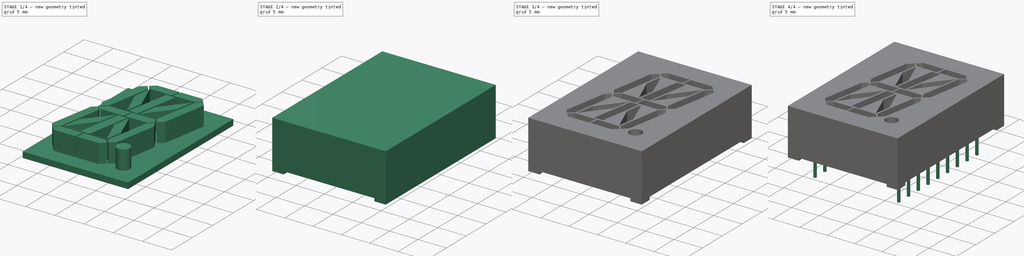
[diagram: build sequence overview — one tinted view per stage of 4, left to right]
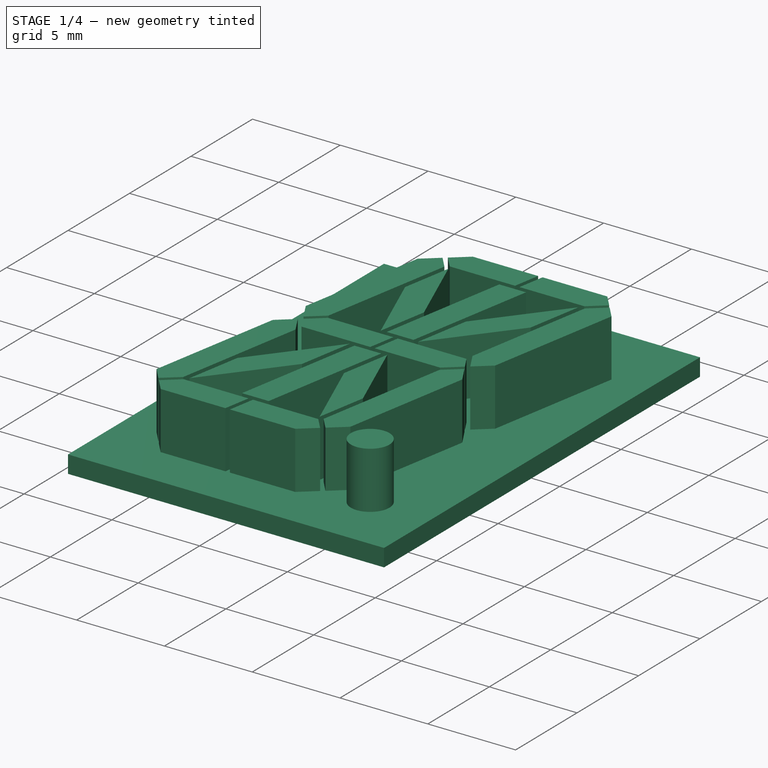
[diagram: stage 1 of 4 — iso view after this stage's code; geometry added in this stage tinted green]
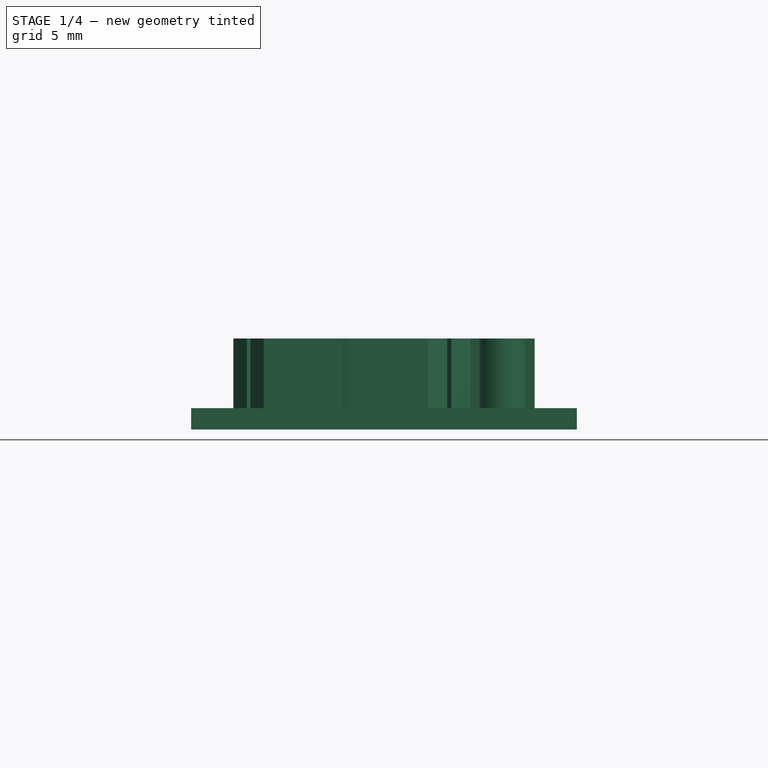
[diagram: stage 1 of 4 — front view after this stage's code; geometry added in this stage tinted green]
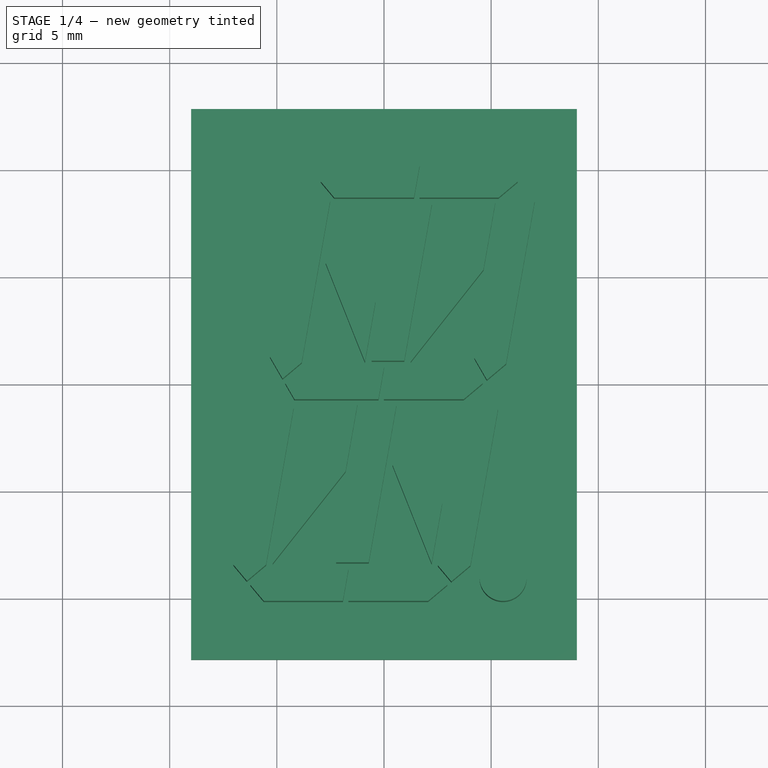
[diagram: stage 1 of 4 — top view after this stage's code; geometry added in this stage tinted green]
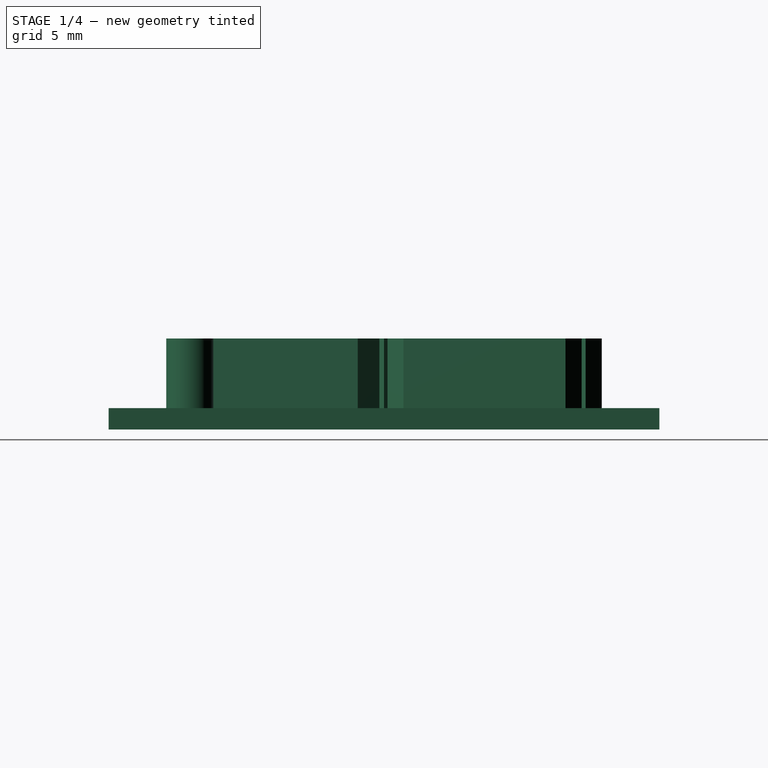
[diagram: stage 1 of 4 — right view after this stage's code; geometry added in this stage tinted green]
FCSTD DOCUMENT  (FreeCAD 1.0R38641 +468 (Git))
Label: PSA08-11SRWA
License: All rights reserved
LicenseURL: http://en.wikipedia.org/wiki/All_rights_reserved
objects: Sketcher::SketchObject×7, PartDesign::Pad×4, PartDesign::Body×3, PartDesign::Pocket×3, Part::FeaturePython×2, Spreadsheet::Sheet×1, Part::Cut×1
note: 40 computed .brp shape members not serialized (recipe doc carries the construction recipe); baked Part::Feature solids carry a one-line shape summary decoded from their .brp

FEATURE [Sketcher::SketchObject] Sketch
  ArcFitTolerance = 0
  AttachmentSupport = -> [XY_Plane001]
  FullyConstrained = true
  MakeInternals = false
  MapMode = 5
  expr: Constraints[6] = <<Param>>.pkgw - 2 mm
  expr: Constraints[7] = <<Param>>.pkgl - 2 mm
  sketch-geometry (4):
    g0: LineSegment StartX=-9 StartY=12.85 StartZ=0 EndX=9 EndY=12.85 EndZ=0
    g1: LineSegment StartX=9 StartY=12.85 StartZ=0 EndX=9 EndY=-12.85 EndZ=0
    g2: LineSegment StartX=9 StartY=-12.85 StartZ=0 EndX=-9 EndY=-12.85 EndZ=0
    g3: LineSegment StartX=-9 StartY=-12.85 StartZ=0 EndX=-9 EndY=12.85 EndZ=0
  constraints (11):
    c: Coincident(g0,g1)
    c: Coincident(g1,g2)
    c: Coincident(g2,g3)
    c: Coincident(g3,g0)
    c: Horizontal(g2)
    c: Vertical(g3)
    c: DistanceY(g1,g1) = 25.7
    c: DistanceX(g0,g0) = 18
    c: Symmetric(g0,g2,g-1)
    c: Horizontal(g0)
    c: Vertical(g1)
FEATURE [PartDesign::Pad] Pad001
  AllowMultiFace = false
  Direction = (0,0,1)
  Length = 1
  Length2 = 100
  Profile = -> Sketch
  Suppressed = false
  Type = 0
FEATURE [Sketcher::SketchObject] Sketch002
  ArcFitTolerance = 0
  AttachmentSupport = -> [XY_Plane001]
  FullyConstrained = true
  MakeInternals = false
  MapMode = 5
  expr: Constraints[101] = <<Param>>.pkgl
  expr: Constraints[102] = <<Param>>.pkgw
  sketch-geometry (174):
    g0: LineSegment StartX=1.66455 StartY=10.16 StartZ=0 EndX=1.40006 EndY=8.66 EndZ=0
    g1: LineSegment StartX=1.40006 StartY=8.66 StartZ=0 EndX=-2.32077 EndY=8.66 EndZ=0
    g2: LineSegment StartX=-2.32077 StartY=8.66 StartZ=0 EndX=-2.95009 EndY=9.41 EndZ=0
    g3: LineSegment StartX=-2.95009 StartY=9.41 StartZ=0 EndX=-2.05628 EndY=10.16 EndZ=0
    g4: LineSegment StartX=-2.05628 StartY=10.16 StartZ=0 EndX=1.66455 EndY=10.16 EndZ=0
    g5: LineSegment StartX=1.91841 StartY=10.16 StartZ=0 EndX=1.65392 EndY=8.66 EndZ=0
    g6: LineSegment StartX=1.65392 StartY=8.66 StartZ=0 EndX=5.34346 EndY=8.66 EndZ=0
    g7: LineSegment StartX=5.34346 StartY=8.66 StartZ=0 EndX=6.23728 EndY=9.41 EndZ=0
    g8: LineSegment StartX=6.23728 StartY=9.41 StartZ=0 EndX=5.60795 EndY=10.16 EndZ=0
    g9: LineSegment StartX=5.60795 StartY=10.16 StartZ=0 EndX=1.91841 EndY=10.16 EndZ=0
    g10: LineSegment StartX=-3.1416 StartY=9.2493 StartZ=0 EndX=-2.51228 EndY=8.4993 EndZ=0
    g11: LineSegment StartX=-2.51228 StartY=8.4993 StartZ=0 EndX=-3.84051 EndY=0.966506 EndZ=0
    g12: LineSegment StartX=-3.84051 StartY=0.966506 StartZ=0 EndX=-4.73433 EndY=0.216506 EndZ=0
    g13: LineSegment StartX=-4.73433 StartY=0.216506 StartZ=0 EndX=-5.31773 EndY=1.22698 EndZ=0
    g14: LineSegment StartX=-5.31773 StartY=1.22698 StartZ=0 EndX=-4.03542 EndY=8.4993 EndZ=0
    g15: LineSegment StartX=-4.03542 StartY=8.4993 StartZ=0 EndX=-3.1416 EndY=9.2493 EndZ=0
    g16: LineSegment StartX=6.39797 StartY=9.21849 StartZ=0 EndX=5.50416 EndY=8.46849 EndZ=0
    g17: LineSegment StartX=5.50416 StartY=8.46849 StartZ=0 EndX=4.21744 EndY=1.17117 EndZ=0
    g18: LineSegment StartX=4.21744 StartY=1.17117 StartZ=0 EndX=4.80084 EndY=0.160697 EndZ=0
    g19: LineSegment StartX=4.80084 StartY=0.160697 StartZ=0 EndX=5.69466 EndY=0.910697 EndZ=0
    g20: LineSegment StartX=5.69466 StartY=0.910697 StartZ=0 EndX=7.0273 EndY=8.46849 EndZ=0
    g21: LineSegment StartX=7.0273 StartY=8.46849 StartZ=0 EndX=6.39797 EndY=9.21849 EndZ=0
    g22: LineSegment StartX=-3.71551 StartY=0.75 StartZ=0 EndX=-4.60933 EndY=0 EndZ=0
    g23: LineSegment StartX=-4.60933 StartY=0 StartZ=0 EndX=-4.17632 EndY=-0.75 EndZ=0
    g24: LineSegment StartX=-4.17632 StartY=-0.75 StartZ=0 EndX=-0.259174 EndY=-0.75 EndZ=0
    g25: LineSegment StartX=-0.259174 StartY=-0.75 StartZ=0 EndX=0.00531691 EndY=0.75 EndZ=0
    g26: LineSegment StartX=0.00531691 StartY=0.75 StartZ=0 EndX=-3.71551 EndY=0.75 EndZ=0
    g27: LineSegment StartX=0.259174 StartY=0.75 StartZ=0 EndX=-0.00531691 EndY=-0.75 EndZ=0
    g28: LineSegment StartX=-0.00531691 StartY=-0.75 StartZ=0 EndX=3.71551 EndY=-0.75 EndZ=0
    g29: LineSegment StartX=3.71551 StartY=-0.75 StartZ=0 EndX=4.60933 EndY=0 EndZ=0
    g30: LineSegment StartX=4.60933 StartY=0 StartZ=0 EndX=4.17632 EndY=0.75 EndZ=0
    g31: LineSegment StartX=4.17632 StartY=0.75 StartZ=0 EndX=0.259174 EndY=0.75 EndZ=0
    g32: LineSegment StartX=4.73433 StartY=-0.216506 StartZ=0 EndX=3.84051 EndY=-0.966506 EndZ=0
    g33: LineSegment StartX=3.84051 StartY=-0.966506 StartZ=0 EndX=2.51228 EndY=-8.4993 EndZ=0
    g34: LineSegment StartX=2.51228 StartY=-8.4993 StartZ=0 EndX=3.1416 EndY=-9.2493 EndZ=0
    g35: LineSegment StartX=3.1416 StartY=-9.2493 StartZ=0 EndX=4.03542 EndY=-8.4993 EndZ=0
    g36: LineSegment StartX=4.03542 StartY=-8.4993 StartZ=0 EndX=5.31773 EndY=-1.22698 EndZ=0
    g37: LineSegment StartX=5.31773 StartY=-1.22698 StartZ=0 EndX=4.73433 EndY=-0.216506 EndZ=0
    g38: LineSegment StartX=-4.21744 StartY=-1.17117 StartZ=0 EndX=-4.80084 EndY=-0.160697 EndZ=0
    g39: LineSegment StartX=-4.80084 StartY=-0.160697 StartZ=0 EndX=-5.69466 EndY=-0.910697 EndZ=0
    g40: LineSegment StartX=-5.69466 StartY=-0.910697 StartZ=0 EndX=-7.0273 EndY=-8.46849 EndZ=0
    g41: LineSegment StartX=-7.0273 StartY=-8.46849 StartZ=0 EndX=-6.39797 EndY=-9.21849 EndZ=0
    g42: LineSegment StartX=-6.39797 StartY=-9.21849 StartZ=0 EndX=-5.50416 EndY=-8.46849 EndZ=0
    g43: LineSegment StartX=-5.50416 StartY=-8.46849 StartZ=0 EndX=-4.21744 EndY=-1.17117 EndZ=0
    g44: LineSegment StartX=-5.34346 StartY=-8.66 StartZ=0 EndX=-6.23728 EndY=-9.41 EndZ=0
    g45: LineSegment StartX=-6.23728 StartY=-9.41 StartZ=0 EndX=-5.60795 EndY=-10.16 EndZ=0
    g46: LineSegment StartX=-5.60795 StartY=-10.16 StartZ=0 EndX=-1.91841 EndY=-10.16 EndZ=0
    g47: LineSegment StartX=-1.91841 StartY=-10.16 StartZ=0 EndX=-1.65392 EndY=-8.66 EndZ=0
    g48: LineSegment StartX=-1.65392 StartY=-8.66 StartZ=0 EndX=-5.34346 EndY=-8.66 EndZ=0
    g49: LineSegment StartX=-1.40006 StartY=-8.66 StartZ=0 EndX=-1.66455 EndY=-10.16 EndZ=0
    g50: LineSegment StartX=-1.66455 StartY=-10.16 StartZ=0 EndX=2.05628 EndY=-10.16 EndZ=0
    g51: LineSegment StartX=2.05628 StartY=-10.16 StartZ=0 EndX=2.95009 EndY=-9.41 EndZ=0
    g52: LineSegment StartX=2.95009 StartY=-9.41 StartZ=0 EndX=2.32077 EndY=-8.66 EndZ=0
    g53: LineSegment StartX=2.32077 StartY=-8.66 StartZ=0 EndX=-1.40006 EndY=-8.66 EndZ=0
    g54: LineSegment StartX=-0.946713 StartY=-1.05 StartZ=0 EndX=0.576427 EndY=-1.05 EndZ=0
    g55: LineSegment StartX=0.576427 StartY=-1.05 StartZ=0 EndX=-0.712524 EndY=-8.36 EndZ=0
    g56: LineSegment StartX=-0.712524 StartY=-8.36 StartZ=0 EndX=-2.23566 EndY=-8.36 EndZ=0
    g57: LineSegment StartX=-2.23566 StartY=-8.36 StartZ=0 EndX=-0.946713 EndY=-1.05 EndZ=0
    g58: LineSegment StartX=-0.576427 StartY=1.05 StartZ=0 EndX=0.946713 EndY=1.05 EndZ=0
    g59: LineSegment StartX=0.946713 StartY=1.05 StartZ=0 EndX=2.23566 EndY=8.36 EndZ=0
    g60: LineSegment StartX=2.23566 StartY=8.36 StartZ=0 EndX=0.712524 EndY=8.36 EndZ=0
    g61: LineSegment StartX=0.712524 StartY=8.36 StartZ=0 EndX=-0.576427 EndY=1.05 EndZ=0
    g62: LineSegment StartX=-2.2234 StartY=8.41 StartZ=0 EndX=-2.71918 EndY=5.59829 EndZ=0
    g63: LineSegment StartX=-2.71918 StartY=5.59829 StartZ=0 EndX=-0.889871 EndY=1 EndZ=0
    g64: LineSegment StartX=-0.889871 StartY=1 StartZ=0 EndX=-0.394092 EndY=3.81171 EndZ=0
    g65: LineSegment StartX=-0.394092 StartY=3.81171 StartZ=0 EndX=-2.2234 EndY=8.41 EndZ=0
    g66: LineSegment StartX=1.79136 StartY=4.11261 StartZ=0 EndX=1.24252 EndY=1 EndZ=0
    g67: LineSegment StartX=1.24252 StartY=1 StartZ=0 EndX=4.64038 EndY=5.29739 EndZ=0
    g68: LineSegment StartX=4.64038 StartY=5.29739 StartZ=0 EndX=5.18922 EndY=8.41 EndZ=0
    g69: LineSegment StartX=5.18922 StartY=8.41 StartZ=0 EndX=1.79136 EndY=4.11261 EndZ=0
    g70: LineSegment StartX=0.889871 StartY=-1 StartZ=0 EndX=0.394092 EndY=-3.81171 EndZ=0
    g71: LineSegment StartX=0.394092 StartY=-3.81171 StartZ=0 EndX=2.2234 EndY=-8.41 EndZ=0
    g72: LineSegment StartX=2.2234 StartY=-8.41 StartZ=0 EndX=2.71918 EndY=-5.59829 EndZ=0
    g73: LineSegment StartX=2.71918 StartY=-5.59829 StartZ=0 EndX=0.889871 EndY=-1 EndZ=0
    g74: LineSegment StartX=-1.24252 StartY=-1 StartZ=0 EndX=-1.79136 EndY=-4.11261 EndZ=0
    g75: LineSegment StartX=-1.79136 StartY=-4.11261 StartZ=0 EndX=-5.18922 EndY=-8.41 EndZ=0
    g76: LineSegment StartX=-5.18922 StartY=-8.41 StartZ=0 EndX=-4.64038 EndY=-5.29739 EndZ=0
    g77: LineSegment StartX=-4.64038 StartY=-5.29739 StartZ=0 EndX=-1.24252 EndY=-1 EndZ=0
    g78: Circle CenterX=5.55628 CenterY=-9.06 CenterZ=0 NormalX=0 NormalY=0 NormalZ=1 AngleXU=0 Radius=1.1
    g79: LineSegment [constr] StartX=-10 StartY=13.85 StartZ=0 EndX=10 EndY=13.85 EndZ=0
    g80: LineSegment [constr] StartX=10 StartY=13.85 StartZ=0 EndX=10 EndY=-13.85 EndZ=0
    g81: LineSegment [constr] StartX=10 StartY=-13.85 StartZ=0 EndX=-10 EndY=-13.85 EndZ=0
    g82: LineSegment [constr] StartX=-10 StartY=-13.85 StartZ=0 EndX=-10 EndY=13.85 EndZ=0
    g83: LineSegment [constr] StartX=-10 StartY=13.85 StartZ=0 EndX=-14.8843 EndY=-13.85 EndZ=0
    g84: LineSegment [constr] StartX=-14.8843 StartY=-13.85 StartZ=0 EndX=-10 EndY=-13.85 EndZ=0
    g85: LineSegment [constr] StartX=-5.31773 StartY=1.22698 StartZ=0 EndX=-5.69466 EndY=-0.910697 EndZ=0
    g86: LineSegment [constr] StartX=-3.84051 StartY=0.966506 StartZ=0 EndX=-4.21744 EndY=-1.17117 EndZ=0
    g87: LineSegment [constr] StartX=-1.65392 StartY=-8.66 StartZ=0 EndX=-1.40006 EndY=-8.66 EndZ=0
    g88: LineSegment [constr] StartX=-1.66455 StartY=-10.16 StartZ=0 EndX=-1.91841 EndY=-10.16 EndZ=0
    g89: LineSegment [constr] StartX=0.00531691 StartY=0.75 StartZ=0 EndX=0.259174 EndY=0.75 EndZ=0
    g90: LineSegment [constr] StartX=-0.259174 StartY=-0.75 StartZ=0 EndX=-0.00531691 EndY=-0.75 EndZ=0
    g91: LineSegment [constr] StartX=1.66455 StartY=10.16 StartZ=0 EndX=1.91841 EndY=10.16 EndZ=0
    g92: LineSegment [constr] StartX=1.40006 StartY=8.66 StartZ=0 EndX=1.65392 EndY=8.66 EndZ=0
    g93: LineSegment [constr] StartX=5.69466 StartY=0.910697 StartZ=0 EndX=5.31773 EndY=-1.22698 EndZ=0
    g94: LineSegment [constr] StartX=4.21744 StartY=1.17117 StartZ=0 EndX=3.84051 EndY=-0.966506 EndZ=0
    g95: LineSegment [constr] StartX=1.40006 StartY=8.66 StartZ=0 EndX=1.40006 EndY=10.16 EndZ=0
    g96: LineSegment [constr] StartX=-3.09195 StartY=13.85 StartZ=0 EndX=7.64246 EndY=11.9572 EndZ=0
    g97: LineSegment [constr] StartX=-2.51228 StartY=8.4993 StartZ=0 EndX=-3.98949 EndY=8.75978 EndZ=0
    g98: LineSegment [constr] StartX=7.0273 StartY=8.46849 StartZ=0 EndX=5.55009 EndY=8.72896 EndZ=0
    g99: LineSegment [constr] StartX=-0.259174 StartY=-0.75 StartZ=0 EndX=-0.259174 EndY=0.75 EndZ=0
    g100: LineSegment [constr] StartX=-1.91841 StartY=-10.16 StartZ=0 EndX=-1.91841 EndY=-8.66 EndZ=0
    g101: LineSegment [constr] StartX=1.66455 StartY=10.16 StartZ=0 EndX=1.91076 EndY=10.1166 EndZ=0
    g102: LineSegment [constr] StartX=-0.576427 StartY=1.05 StartZ=0 EndX=-0.946713 EndY=-1.05 EndZ=0
    g103: LineSegment [constr] StartX=0.946713 StartY=1.05 StartZ=0 EndX=0.576427 EndY=-1.05 EndZ=0
    g104: LineSegment [constr] StartX=0.712524 StartY=8.36 StartZ=0 EndX=2.18974 EndY=8.09953 EndZ=0
    g105: LineSegment [constr] StartX=-4.80084 StartY=-0.160697 StartZ=0 EndX=-4.60933 EndY=0 EndZ=0
    g106: LineSegment [constr] StartX=-4.60933 StartY=0 StartZ=0 EndX=-4.73433 EndY=0.216506 EndZ=0
    g107: LineSegment [constr] StartX=4.60933 StartY=0 StartZ=0 EndX=4.73433 EndY=-0.216506 EndZ=0
    g108: LineSegment [constr] StartX=4.60933 StartY=0 StartZ=0 EndX=4.80084 EndY=0.160697 EndZ=0
    g109: LineSegment [constr] StartX=-6.23728 StartY=-9.41 StartZ=0 EndX=-6.39797 EndY=-9.21849 EndZ=0
    g110: LineSegment [constr] StartX=2.95009 StartY=-9.41 StartZ=0 EndX=3.1416 EndY=-9.2493 EndZ=0
    g111: LineSegment [constr] StartX=-3.1416 StartY=9.2493 StartZ=0 EndX=-2.95009 EndY=9.41 EndZ=0
    g112: LineSegment [constr] StartX=6.23728 StartY=9.41 StartZ=0 EndX=6.39797 EndY=9.21849 EndZ=0
    g113: LineSegment [constr] StartX=1.40006 StartY=8.66 StartZ=0 EndX=0.00531691 EndY=0.75 EndZ=0
    g114: LineSegment [constr] StartX=-0.259174 StartY=-0.75 StartZ=0 EndX=-1.65392 EndY=-8.66 EndZ=0
    g115: LineSegment [constr] StartX=0.712524 StartY=8.36 StartZ=0 EndX=0.712524 EndY=8.66 EndZ=0
    g116: LineSegment [constr] StartX=-0.576427 StartY=1.05 StartZ=0 EndX=-0.576427 EndY=0.75 EndZ=0
    g117: LineSegment [constr] StartX=-0.946713 StartY=-1.05 StartZ=0 EndX=-0.946713 EndY=-0.75 EndZ=0
    g118: LineSegment [constr] StartX=-2.23566 StartY=-8.36 StartZ=0 EndX=-2.23566 EndY=-8.66 EndZ=0
    g119: LineSegment [constr] StartX=-0.259174 StartY=0.75 StartZ=0 EndX=-1.55821 EndY=0 EndZ=0
    g120: LineSegment [constr] StartX=-1.55821 StartY=0 StartZ=0 EndX=-0.259174 EndY=-0.75 EndZ=0
    g121: LineSegment [constr] StartX=0.576427 StartY=-1.05 StartZ=0 EndX=3.72781 EndY=-1.60567 EndZ=0
    g122: LineSegment [constr] StartX=-0.946713 StartY=-1.05 StartZ=0 EndX=-4.0981 EndY=-0.494326 EndZ=0
    g123: LineSegment [constr] StartX=4.64038 StartY=5.29739 StartZ=0 EndX=3.46375 EndY=6.22773 EndZ=0
    g124: LineSegment [constr] StartX=-2.71918 StartY=5.59829 StartZ=0 EndX=-1.32542 EndY=6.15276 EndZ=0
    g125: LineSegment [constr] StartX=0.394092 StartY=-3.81171 StartZ=0 EndX=1.78785 EndY=-3.25724 EndZ=0
    g126: LineSegment [constr] StartX=-1.79136 StartY=-4.11261 StartZ=0 EndX=-2.968 EndY=-3.18227 EndZ=0
    g127: LineSegment [constr] StartX=-3.1416 StartY=9.2493 StartZ=0 EndX=-4.73433 EndY=0.216506 EndZ=0
    g128: LineSegment [constr] StartX=-4.73433 StartY=0.216506 StartZ=0 EndX=-4.80084 EndY=-0.160697 EndZ=0
    g129: LineSegment [constr] StartX=-4.80084 StartY=-0.160697 StartZ=0 EndX=-6.39797 EndY=-9.21849 EndZ=0
    g130: LineSegment [constr] StartX=6.39797 StartY=9.21849 StartZ=0 EndX=4.80084 EndY=0.160697 EndZ=0
    g131: LineSegment [constr] StartX=4.80084 StartY=0.160697 StartZ=0 EndX=4.73433 EndY=-0.216506 EndZ=0
    g132: LineSegment [constr] StartX=4.73433 StartY=-0.216506 StartZ=0 EndX=3.1416 EndY=-9.2493 EndZ=0
    g133: LineSegment [constr] StartX=-7.0273 StartY=-8.46849 StartZ=0 EndX=-6.28869 EndY=-8.59873 EndZ=0
    g134: LineSegment [constr] StartX=-5.50416 StartY=-8.46849 StartZ=0 EndX=-6.24276 EndY=-8.33825 EndZ=0
    g135: LineSegment [constr] StartX=2.51228 StartY=-8.4993 StartZ=0 EndX=3.25088 EndY=-8.62954 EndZ=0
    g136: LineSegment [constr] StartX=4.03542 StartY=-8.4993 StartZ=0 EndX=3.29681 EndY=-8.36907 EndZ=0
    g137: LineSegment [constr] StartX=-2.95009 StartY=9.41 StartZ=0 EndX=6.23728 EndY=9.41 EndZ=0
    g138: LineSegment [constr] StartX=5.34346 StartY=8.66 StartZ=0 EndX=5.34346 EndY=9.41 EndZ=0
    g139: LineSegment [constr] StartX=5.60795 StartY=10.16 StartZ=0 EndX=5.60795 EndY=9.41 EndZ=0
    g140: LineSegment [constr] StartX=-0.889871 StartY=1 StartZ=0 EndX=1.24252 EndY=1 EndZ=0
    g141: LineSegment [constr] StartX=-2.71918 StartY=5.59829 StartZ=0 EndX=-3.01462 EndY=5.65039 EndZ=0
    g142: LineSegment [constr] StartX=4.64038 StartY=5.29739 StartZ=0 EndX=4.93582 EndY=5.2453 EndZ=0
    g143: LineSegment [constr] StartX=-1.79136 StartY=-4.11261 StartZ=0 EndX=-1.49592 EndY=-4.1647 EndZ=0
    g144: LineSegment [constr] StartX=0.394092 StartY=-3.81171 StartZ=0 EndX=0.0986492 EndY=-3.75961 EndZ=0
    g145: LineSegment [constr] StartX=2.71918 StartY=-5.59829 StartZ=0 EndX=3.01462 EndY=-5.65039 EndZ=0
    g146: LineSegment [constr] StartX=-4.64038 StartY=-5.29739 StartZ=0 EndX=-4.93582 EndY=-5.2453 EndZ=0
    g147: LineSegment [constr] StartX=-6.23728 StartY=-9.41 StartZ=0 EndX=2.95009 EndY=-9.41 EndZ=0
    g148: LineSegment [constr] StartX=2.05628 StartY=-10.16 StartZ=0 EndX=2.05628 EndY=-9.41 EndZ=0
    g149: LineSegment [constr] StartX=2.32077 StartY=-8.66 StartZ=0 EndX=2.32077 EndY=-9.41 EndZ=0
    g150: LineSegment [constr] StartX=2.05628 StartY=-10.16 StartZ=0 EndX=3.74259 EndY=-10.16 EndZ=0
    g151: LineSegment [constr] StartX=3.74259 StartY=-10.16 StartZ=0 EndX=4.03542 EndY=-8.4993 EndZ=0
    g152: LineSegment [constr] StartX=3.74259 StartY=-10.16 StartZ=0 EndX=5.55628 EndY=-10.16 EndZ=0
    g153: LineSegment [constr] StartX=0 StartY=0 StartZ=0 EndX=0.126928 EndY=0 EndZ=0
    g154: LineSegment [constr] StartX=0 StartY=0 StartZ=0 EndX=-0.126928 EndY=0 EndZ=0
    g155: LineSegment [constr] StartX=0.126928 StartY=0 StartZ=0 EndX=4.60933 EndY=0 EndZ=0
    g156: LineSegment [constr] StartX=-0.126928 StartY=0 StartZ=0 EndX=-4.60933 EndY=0 EndZ=0
    g157: LineSegment [constr] StartX=-5.60795 StartY=-10.16 StartZ=0 EndX=-7.32556 EndY=-10.16 EndZ=0
    g158: LineSegment [constr] StartX=-7.32556 StartY=-10.16 StartZ=0 EndX=-7.0273 EndY=-8.46849 EndZ=0
    g159: LineSegment [constr] StartX=-2.05628 StartY=10.16 StartZ=0 EndX=-3.74259 EndY=10.16 EndZ=0
    g160: LineSegment [constr] StartX=-3.74259 StartY=10.16 StartZ=0 EndX=-4.03542 EndY=8.4993 EndZ=0
    g161: LineSegment [constr] StartX=-3.74259 StartY=10.16 StartZ=0 EndX=-3.09195 EndY=13.85 EndZ=0
    g162: LineSegment [constr] StartX=5.60795 StartY=10.16 StartZ=0 EndX=7.32556 EndY=10.16 EndZ=0
    g163: LineSegment [constr] StartX=7.32556 StartY=10.16 StartZ=0 EndX=7.0273 EndY=8.46849 EndZ=0
    g164: LineSegment [constr] StartX=7.32556 StartY=10.16 StartZ=0 EndX=7.64246 EndY=11.9572 EndZ=0
    g165: LineSegment [constr] StartX=-0.394092 StartY=3.81171 StartZ=0 EndX=-0.0986492 EndY=3.75961 EndZ=0
    g166: LineSegment [constr] StartX=1.79136 StartY=4.11261 StartZ=0 EndX=1.49592 EndY=4.1647 EndZ=0
    g167: LineSegment [constr] StartX=-0.889871 StartY=1 StartZ=0 EndX=-0.933953 EndY=0.75 EndZ=0
    g168: LineSegment [constr] StartX=-2.2234 StartY=8.41 StartZ=0 EndX=5.18922 EndY=8.41 EndZ=0
    g169: LineSegment [constr] StartX=-2.2234 StartY=8.41 StartZ=0 EndX=-2.17932 EndY=8.66 EndZ=0
    g170: LineSegment [constr] StartX=-1.24252 StartY=-1 StartZ=0 EndX=0.889871 EndY=-1 EndZ=0
    g171: LineSegment [constr] StartX=0.889871 StartY=-1 StartZ=0 EndX=0.933953 EndY=-0.75 EndZ=0
    g172: LineSegment [constr] StartX=-5.18922 StartY=-8.41 StartZ=0 EndX=2.2234 EndY=-8.41 EndZ=0
    g173: LineSegment [constr] StartX=2.2234 StartY=-8.41 StartZ=0 EndX=2.17932 EndY=-8.66 EndZ=0
  constraints (477):
    c: Coincident(g0,g1)
    c: Horizontal(g1)
    c: Coincident(g1,g2)
    c: Coincident(g2,g3)
    c: Coincident(g3,g4)
    c: Coincident(g4,g0)
    c: Horizontal(g4)
    c: Coincident(g5,g6)
    c: Coincident(g6,g7)
    c: Coincident(g7,g8)
    c: Coincident(g8,g9)
    c: Coincident(g9,g5)
    c: Horizontal(g9)
    c: Coincident(g10,g11)
    c: Coincident(g11,g12)
    c: Coincident(g12,g13)
    c: Coincident(g13,g14)
    c: Coincident(g14,g15)
    c: Coincident(g15,g10)
    c: Coincident(g16,g17)
    c: Coincident(g17,g18)
    c: Coincident(g18,g19)
    c: Coincident(g19,g20)
    c: Coincident(g20,g21)
    c: Coincident(g21,g16)
    c: Coincident(g22,g23)
    c: Coincident(g23,g24)
    c: Horizontal(g24)
    c: Coincident(g24,g25)
    c: Coincident(g25,g26)
    c: Coincident(g26,g22)
    c: Horizontal(g26)
    c: Coincident(g27,g28)
    c: Coincident(g28,g29)
    c: Coincident(g29,g30)
    c: Coincident(g30,g31)
    c: Coincident(g31,g27)
    c: Horizontal(g31)
    c: Coincident(g32,g33)
    c: Coincident(g33,g34)
    c: Coincident(g34,g35)
    c: Coincident(g35,g36)
    c: Coincident(g36,g37)
    c: Coincident(g37,g32)
    c: Coincident(g38,g39)
    c: Coincident(g39,g40)
    c: Coincident(g40,g41)
    c: Coincident(g41,g42)
    c: Coincident(g42,g43)
    c: Coincident(g43,g38)
    c: Coincident(g44,g45)
    c: Coincident(g45,g46)
    c: Horizontal(g46)
    c: Coincident(g46,g47)
    c: Coincident(g47,g48)
    c: Coincident(g48,g44)
    c: Coincident(g49,g50)
    c: Horizontal(g50)
    c: Coincident(g50,g51)
    c: Coincident(g51,g52)
    c: Coincident(g52,g53)
    c: Coincident(g53,g49)
    c: Horizontal(g53)
    c: Horizontal(g54)
    c: Coincident(g54,g55)
    c: Coincident(g55,g56)
    c: Coincident(g56,g57)
    c: Coincident(g57,g54)
    c: Horizontal(g58)
    c: Coincident(g58,g59)
    c: Coincident(g59,g60)
    c: Horizontal(g60)
    c: Coincident(g60,g61)
    c: Coincident(g61,g58)
    c: Coincident(g62,g63)
    c: Coincident(g63,g64)
    c: Coincident(g64,g65)
    c: Coincident(g66,g67)
    c: Coincident(g67,g68)
    c: Coincident(g68,g69)
    c: Coincident(g69,g66)
    c: Coincident(g70,g71)
    c: Coincident(g71,g72)
    c: Coincident(g72,g73)
    c: Coincident(g73,g70)
    c: Coincident(g74,g75)
    c: Coincident(g75,g76)
    c: Coincident(g76,g77)
    c: Coincident(g77,g74)
    c: Coincident(g62,g65)
    c: Horizontal(g48)
    c: Coincident(g79,g80)
    c: Coincident(g80,g81)
    c: Coincident(g81,g82)
    c: Coincident(g82,g79)
    c: Horizontal(g79)
    c: Vertical(g82)
    c: Coincident(g79,g83)
    c: Coincident(g83,g84)
    c: Coincident(g84,g81)
    c: Horizontal(g84)
    c: DistanceX(g79,g79) = 20
    c: DistanceY(g80,g80) = 27.7
    c: Symmetric(g79,g80,g-1)
    c: Symmetric(g81,g80,g-2)
    c: Angle(g83,g82) = 0.174533
    c: Horizontal(g28)
    c: Horizontal(g56)
    c: Horizontal(g6)
    c: Coincident(g85,g13)
    c: Coincident(g85,g39)
    c: Parallel(g40,g85)
    c: Parallel(g85,g14)
    c: Parallel(g14,g83)
    c: Coincident(g86,g11)
    c: Coincident(g86,g38)
    c: Parallel(g86,g11)
    c: Parallel(g11,g43)
    c: Parallel(g43,g83)
    c: Coincident(g87,g47)
    c: Coincident(g87,g49)
    c: Horizontal(g87)
    c: Coincident(g88,g46)
    c: Coincident(g49,g88)
    c: Horizontal(g88)
    c: Coincident(g89,g25)
    c: Coincident(g89,g27)
    c: Coincident(g90,g24)
    c: Coincident(g90,g27)
    c: Horizontal(g90)
    c: Horizontal(g89)
    c: Coincident(g91,g0)
    c: Coincident(g91,g5)
    c: Coincident(g92,g0)
    c: Coincident(g92,g5)
    c: Horizontal(g91)
    c: Horizontal(g92)
    c: Coincident(g93,g19)
    c: Coincident(g93,g36)
    c: Coincident(g94,g17)
    c: Coincident(g94,g32)
    c: Parallel(g33,g94)
    c: Parallel(g94,g17)
    c: Parallel(g17,g20)
    c: Parallel(g20,g93)
    c: Parallel(g93,g36)
    c: Parallel(g36,g83)
    c: Coincident(g95,g0)
    c: PointOnObject(g95,g4)
    c: Vertical(g95)
    c: DistanceY(g95,g95) = 1.5
    c: PointOnObject(g96,g79)
    c: Distance(g96) = 10.9
    c: Coincident(g97,g10)
    c: PointOnObject(g97,g14)
    c: Perpendicular(g11,g97)
    c: Equal(g97,g95)
    c: PointOnObject(g98,g17)
    c: Perpendicular(g98,g20)
    c: Equal(g98,g95)
    c: Coincident(g20,g98)
    c: DistanceY(g45,g3) = 20.32
    c: Parallel(g25,g27)
    c: Parallel(g0,g5)
    c: Parallel(g47,g49)
    c: Coincident(g99,g24)
    c: PointOnObject(g99,g26)
    c: Vertical(g99)
    c: Coincident(g100,g46)
    c: PointOnObject(g100,g48)
    c: Vertical(g100)
    c: Equal(g100,g99)
    c: Equal(g99,g95)
    c: Equal(g91,g89)
    c: Equal(g89,g87)
    c: PointOnObject(g101,g5)
    c: Perpendicular(g0,g101)
    c: Distance(g101) = 0.25
    c: Coincident(g101,g0)
    c: Coincident(g102,g58)
    c: Coincident(g102,g54)
    c: Coincident(g103,g58)
    c: Coincident(g104,g60)
    c: PointOnObject(g104,g59)
    c: Perpendicular(g61,g104)
    c: Equal(g104,g95)
    c: Parallel(g61,g102)
    c: Parallel(g102,g59)
    c: Parallel(g59,g103)
    c: Parallel(g103,g55)
    c: Parallel(g55,g57)
    c: Parallel(g57,g83)
    c: Coincident(g103,g54)
    c: Coincident(g105,g22)
    c: Coincident(g106,g22)
    c: Coincident(g106,g12)
    c: Parallel(g13,g106)
    c: Parallel(g106,g23)
    c: Parallel(g22,g105)
    c: Parallel(g105,g39)
    c: Coincident(g38,g105)
    c: Equal(g105,g106)
    c: Equal(g106,g101)
    c: Parallel(g22,g12)
    c: Parallel(g23,g38)
    c: Diameter(g78) = 2.2
    c: Coincident(g107,g29)
    c: Coincident(g107,g32)
    c: Coincident(g108,g29)
    c: Coincident(g108,g18)
    c: Parallel(g30,g18)
    c: Parallel(g18,g37)
    c: Parallel(g107,g37)
    c: Parallel(g108,g19)
    c: Parallel(g19,g29)
    c: Parallel(g29,g32)
    c: Equal(g108,g107)
    c: Equal(g108,g101)
    c: Coincident(g109,g44)
    c: Coincident(g109,g41)
    c: Coincident(g110,g51)
    c: Coincident(g110,g34)
    c: Parallel(g51,g110)
    c: Parallel(g110,g35)
    c: Parallel(g52,g34)
    c: Parallel(g41,g109)
    c: Parallel(g109,g45)
    c: Parallel(g42,g44)
    c: Equal(g109,g110)
    c: Equal(g109,g101)
    c: Coincident(g111,g10)
    c: Coincident(g111,g2)
    c: Coincident(g112,g7)
    c: Coincident(g112,g16)
    c: Parallel(g21,g112)
    c: Parallel(g112,g8)
    c: Parallel(g7,g16)
    c: Parallel(g15,g111)
    c: Parallel(g111,g3)
    c: Parallel(g2,g10)
    c: Equal(g111,g101)
    c: Equal(g112,g101)
    c: Coincident(g113,g0)
    c: Coincident(g113,g25)
    c: Coincident(g114,g24)
    c: Coincident(g114,g47)
    c: Parallel(g0,g113)
    c: Parallel(g25,g113)
    c: Parallel(g25,g114)
    c: Parallel(g47,g114)
    c: Parallel(g0,g83)
    c: Parallel(g62,g64)
    c: Parallel(g64,g66)
    c: Parallel(g66,g68)
    c: Parallel(g68,g74)
    c: Parallel(g74,g76)
    c: Parallel(g76,g70)
    c: Parallel(g70,g72)
    c: Parallel(g72,g83)
    c: Coincident(g115,g60)
    c: PointOnObject(g115,g1)
    c: Vertical(g115)
    c: DistanceY(g115,g115) = 0.3
    c: Coincident(g116,g58)
    c: PointOnObject(g116,g26)
    c: Vertical(g116)
    c: Coincident(g117,g54)
    c: PointOnObject(g117,g24)
    c: Vertical(g117)
    c: Coincident(g118,g56)
    c: PointOnObject(g118,g48)
    c: Vertical(g118)
    c: Equal(g118,g117)
    c: Equal(g117,g116)
    c: Equal(g116,g115)
    c: Coincident(g119,g99)
    c: PointOnObject(g119,g-1)
    c: Coincident(g120,g119)
    c: Coincident(g120,g24)
    c: Equal(g119,g120)
    c: PointOnObject(g121,g33)
    c: Coincident(g122,g54)
    c: PointOnObject(g122,g86)
    c: Coincident(g121,g54)
    c: Perpendicular(g121,g55)
    c: Perpendicular(g122,g57)
    c: Equal(g122,g121)
    c: Equal(g59,g55)
    c: Coincident(g123,g67)
    c: PointOnObject(g123,g69)
    c: Perpendicular(g67,g123)
    c: Equal(g123,g95)
    c: Parallel(g69,g67)
    c: PointOnObject(g124,g65)
    c: Coincident(g124,g62)
    c: Equal(g124,g95)
    c: Parallel(g65,g63)
    c: Coincident(g125,g70)
    c: PointOnObject(g125,g73)
    c: PointOnObject(g126,g77)
    c: Coincident(g126,g74)
    c: Equal(g126,g125)
    c: Equal(g125,g95)
    c: Parallel(g75,g77)
    c: Parallel(g71,g73)
    c: Coincident(g127,g10)
    c: Coincident(g127,g12)
    c: Coincident(g128,g12)
    c: Coincident(g128,g38)
    c: Coincident(g129,g38)
    c: Coincident(g129,g41)
    c: Coincident(g130,g16)
    c: Coincident(g130,g18)
    c: Coincident(g131,g18)
    c: Coincident(g131,g32)
    c: Coincident(g132,g32)
    c: Coincident(g132,g34)
    c: Parallel(g130,g131)
    c: Parallel(g131,g132)
    c: Parallel(g129,g128)
    c: Parallel(g128,g127)
    c: Parallel(g127,g130)
    c: Parallel(g130,g83)
    c: Coincident(g133,g40)
    c: PointOnObject(g133,g129)
    c: Coincident(g134,g42)
    c: PointOnObject(g134,g129)
    c: Perpendicular(g129,g134)
    c: Perpendicular(g133,g129)
    c: Equal(g134,g133)
    c: Coincident(g135,g33)
    c: PointOnObject(g135,g132)
    c: Coincident(g136,g35)
    c: PointOnObject(g136,g132)
    c: Perpendicular(g132,g136)
    c: Perpendicular(g135,g132)
    c: Equal(g135,g136)
    c: PointOnObject(g22,g-1)
    c: PointOnObject(g29,g-1)
    c: Coincident(g137,g2)
    c: Coincident(g137,g7)
    c: Coincident(g138,g6)
    c: PointOnObject(g138,g137)
    c: Vertical(g138)
    c: Coincident(g139,g8)
    c: PointOnObject(g139,g137)
    c: Vertical(g139)
    c: Perpendicular(g137,g139)
    c: Equal(g138,g139)
    c: Coincident(g140,g63)
    c: Coincident(g140,g66)
    c: Horizontal(g140)
    c: Coincident(g141,g62)
    c: PointOnObject(g141,g11)
    c: Perpendicular(g62,g141)
    c: Equal(g141,g115)
    c: Coincident(g142,g67)
    c: PointOnObject(g142,g17)
    c: Perpendicular(g68,g142)
    c: Equal(g142,g115)
    c: Coincident(g143,g74)
    c: PointOnObject(g143,g57)
    c: Coincident(g144,g70)
    c: PointOnObject(g144,g55)
    c: Coincident(g145,g72)
    c: PointOnObject(g145,g33)
    c: PointOnObject(g146,g43)
    c: Coincident(g146,g76)
    c: Perpendicular(g76,g146)
    c: Perpendicular(g72,g145)
    c: Perpendicular(g70,g144)
    c: Perpendicular(g74,g143)
    c: Equal(g143,g144)
    c: Equal(g144,g146)
    c: Equal(g146,g145)
    c: Equal(g145,g117)
    c: Coincident(g147,g44)
    c: Coincident(g147,g51)
    c: Horizontal(g147)
    c: PointOnObject(g148,g147)
    c: Vertical(g148)
    c: Coincident(g149,g52)
    c: PointOnObject(g149,g147)
    c: Vertical(g149)
    c: Equal(g148,g149)
    c: Coincident(g50,g148)
    c: Coincident(g150,g50)
    c: Horizontal(g150)
    c: Coincident(g151,g150)
    c: Coincident(g151,g35)
    c: Coincident(g152,g150)
    c: PointOnObject(g152,g78)
    c: Horizontal(g152)
    c: Tangent(g152,g78)
    c: Parallel(g151,g36)
    c: Equal(g150,g151)
    c: DistanceX(g50,g152) = 3.5
    c: Coincident(g153,g-1)
    c: PointOnObject(g153,g27)
    c: Horizontal(g153)
    c: Coincident(g154,g-1)
    c: PointOnObject(g154,g25)
    c: Horizontal(g154)
    c: Coincident(g155,g153)
    c: Coincident(g155,g29)
    c: Coincident(g156,g154)
    c: Coincident(g156,g22)
    c: Equal(g154,g153)
    c: Equal(g156,g155)
    c: Coincident(g157,g45)
    c: Horizontal(g157)
    c: Coincident(g158,g157)
    c: Coincident(g158,g40)
    c: Parallel(g158,g40)
    c: Equal(g158,g157)
    c: Coincident(g159,g3)
    c: Horizontal(g159)
    c: Coincident(g160,g159)
    c: Coincident(g160,g14)
    c: Coincident(g161,g159)
    c: Coincident(g161,g96)
    c: Coincident(g162,g8)
    c: Horizontal(g162)
    c: Coincident(g163,g162)
    c: Coincident(g163,g20)
    c: Coincident(g164,g162)
    c: Coincident(g164,g96)
    c: Parallel(g14,g160)
    c: Parallel(g160,g161)
    c: Equal(g160,g159)
    c: Parallel(g163,g20)
    c: Parallel(g20,g164)
    c: Equal(g162,g163)
    c: Perpendicular(g96,g164)
    c: Coincident(g165,g64)
    c: Coincident(g166,g66)
    c: PointOnObject(g166,g59)
    c: PointOnObject(g165,g61)
    c: Perpendicular(g64,g165)
    c: Perpendicular(g66,g166)
    c: Equal(g166,g165)
    c: Equal(g165,g116)
    c: PointOnObject(g167,g26)
    c: Parallel(g167,g64)
    c: Equal(g167,g89)
    c: Coincident(g167,g63)
    c: Coincident(g168,g62)
    c: Coincident(g168,g68)
    c: Horizontal(g168)
    c: Coincident(g169,g62)
    c: PointOnObject(g169,g1)
    c: Parallel(g62,g169)
    c: Equal(g169,g92)
    c: Coincident(g170,g74)
    c: Coincident(g170,g70)
    c: Horizontal(g170)
    c: Coincident(g171,g70)
    c: PointOnObject(g171,g28)
    c: Parallel(g70,g171)
    c: Equal(g171,g90)
    c: Coincident(g172,g75)
    c: Coincident(g172,g71)
    c: Horizontal(g172)
    c: Coincident(g173,g71)
    c: PointOnObject(g173,g53)
    c: Parallel(g173,g72)
    c: Equal(g173,g87)
    c: Equal(g10,g2)
    c: Equal(g7,g16)
    c: Equal(g34,g52)
    c: Equal(g42,g44)
    c: Equal(g119,g99)
    c: Equal(g32,g29)
    c: Equal(g12,g22)
    c: Perpendicular(g63,g124)
    c: Perpendicular(g75,g126)
    c: Perpendicular(g71,g125)
FEATURE [PartDesign::Pad] Pad002
  AllowMultiFace = false
  BaseFeature = -> Pad001
  Direction = (0,0,1)
  Length = 4.25
  Length2 = 100
  Profile = -> Sketch002
  Refine = true
  Suppressed = false
  Type = 0
  expr: Length = <<Param>>.pkgh / 2
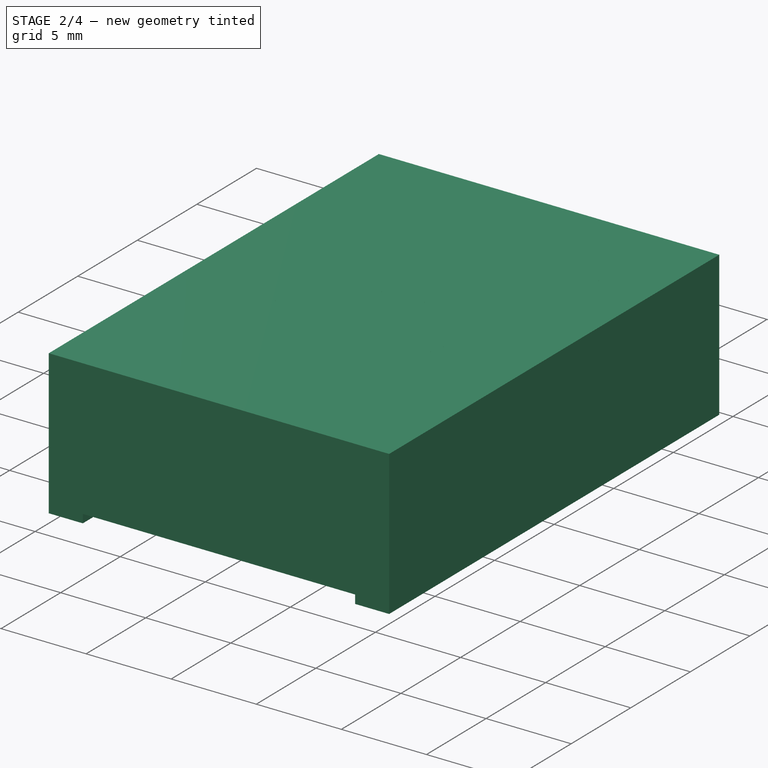
[diagram: stage 2 of 4 — iso view after this stage's code; geometry added in this stage tinted green]
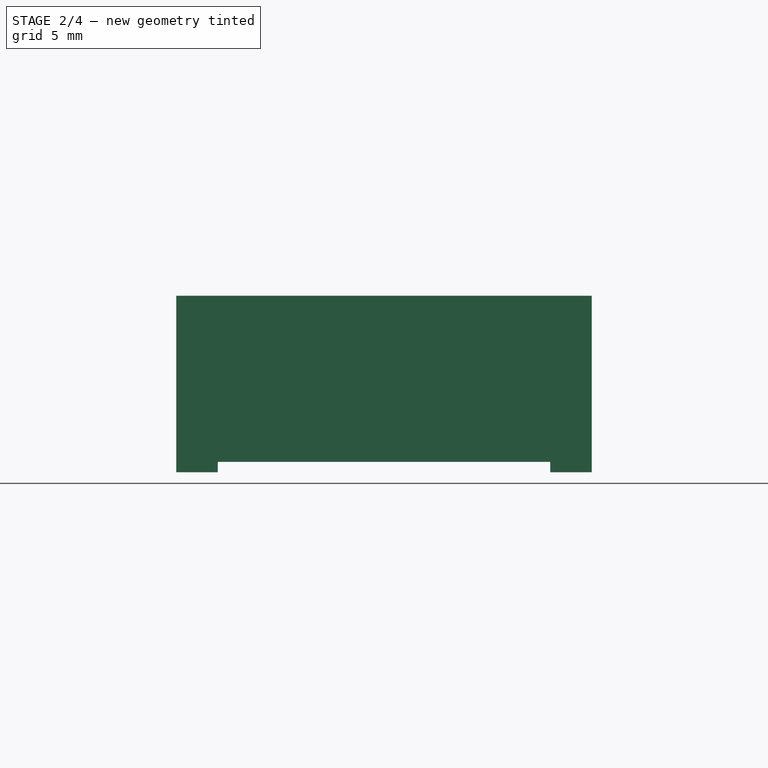
[diagram: stage 2 of 4 — front view after this stage's code; geometry added in this stage tinted green]
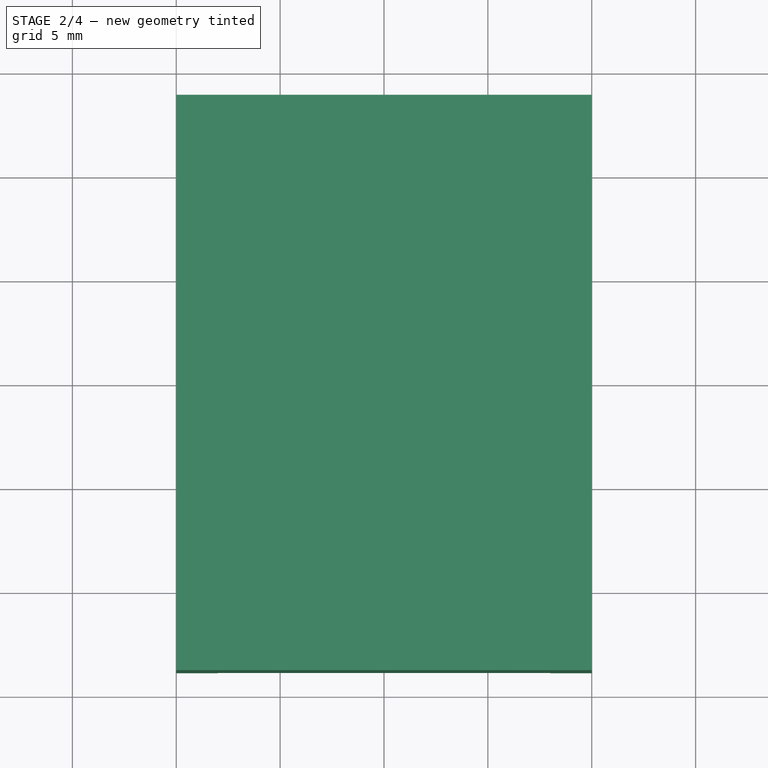
[diagram: stage 2 of 4 — top view after this stage's code; geometry added in this stage tinted green]
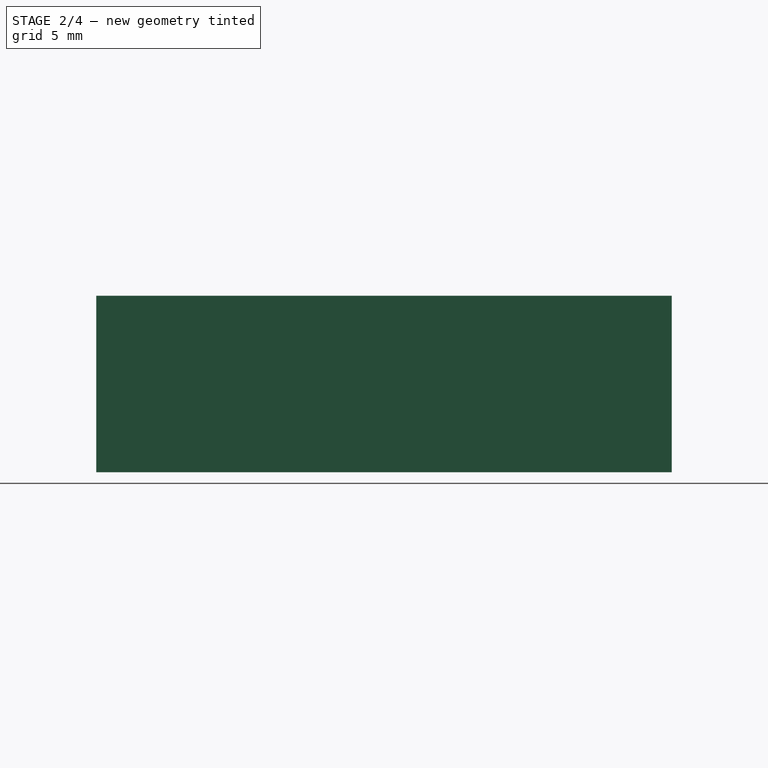
[diagram: stage 2 of 4 — right view after this stage's code; geometry added in this stage tinted green]
FEATURE [PartDesign::Body] Body001  label="Digit"
  AllowCompound = false
  Group = -> [Sketch,Pad001,Sketch002,Pad002]
  Origin = -> Origin001
  Placement = pos=(0,0,4.25) rot=(0,0,1;0rad)
  Tip = -> Pad002
  expr: .Placement.Base.z = <<Param>>.pkgh / 2
FEATURE [Sketcher::SketchObject] Sketch004
  ArcFitTolerance = 0
  AttachmentSupport = -> [XY_Plane003]
  FullyConstrained = true
  MakeInternals = false
  MapMode = 5
  expr: Constraints[8] = <<Param>>.pkgl
  expr: Constraints[9] = <<Param>>.pkgw
  sketch-geometry (4):
    g0: LineSegment StartX=-10 StartY=13.85 StartZ=0 EndX=10 EndY=13.85 EndZ=0
    g1: LineSegment StartX=10 StartY=13.85 StartZ=0 EndX=10 EndY=-13.85 EndZ=0
    g2: LineSegment StartX=10 StartY=-13.85 StartZ=0 EndX=-10 EndY=-13.85 EndZ=0
    g3: LineSegment StartX=-10 StartY=-13.85 StartZ=0 EndX=-10 EndY=13.85 EndZ=0
  constraints (11):
    c: Coincident(g0,g1)
    c: Coincident(g1,g2)
    c: Coincident(g2,g3)
    c: Coincident(g3,g0)
    c: Horizontal(g0)
    c: Horizontal(g2)
    c: Vertical(g1)
    c: Vertical(g3)
    c: DistanceX(g0,g0) = 20
    c: DistanceY(g1,g1) = 27.7
    c: Symmetric(g0,g2,g-1)
FEATURE [PartDesign::Pad] Pad004  label="Pad005"
  AllowMultiFace = false
  Direction = (0,0,1)
  Length = 8.5
  Length2 = 100
  Profile = -> Sketch004
  Suppressed = false
  Type = 0
FEATURE [Sketcher::SketchObject] Sketch005
  ArcFitTolerance = 0
  AttachmentSupport = -> [XZ_Plane003]
  FullyConstrained = true
  MakeInternals = false
  MapMode = 5
  Placement = pos=(0,0,0) rot=(1,0,0;1.5708rad)
  expr: Constraints[10] = <<Param>>.pkgl - <<Param>>.footedge * 2
  expr: Constraints[7] = <<Param>>.footh
  sketch-geometry (4):
    g0: LineSegment StartX=-8 StartY=0 StartZ=0 EndX=8 EndY=0 EndZ=0
    g1: LineSegment StartX=8 StartY=0 StartZ=0 EndX=8 EndY=0.5 EndZ=0
    g2: LineSegment StartX=8 StartY=0.5 StartZ=0 EndX=-8 EndY=0.5 EndZ=0
    g3: LineSegment StartX=-8 StartY=0.5 StartZ=0 EndX=-8 EndY=0 EndZ=0
  constraints (11):
    c: Coincident(g0,g1)
    c: Coincident(g1,g2)
    c: Coincident(g2,g3)
    c: Coincident(g3,g0)
    c: Horizontal(g2)
    c: Vertical(g1)
    c: Vertical(g3)
    c: DistanceY(g1,g1) = 0.5
    c: Symmetric(g0,g0,g-1)
    c: Horizontal(g0)
    c: DistanceX(g0,g0) = 16
FEATURE [PartDesign::Pocket] Pocket
  AllowMultiFace = false
  BaseFeature = -> Pad004
  Direction = (0,1,-2e-16)
  Length = 5
  Length2 = 100
  Midplane = true
  Profile = -> Sketch005
  Suppressed = false
  Type = 1
FEATURE [PartDesign::Body] Body003
  AllowCompound = false
  Group = -> [Sketch004,Pad004,Sketch005,Pocket,Sketch006,Pocket001,Sketch007,Pocket002]
  Origin = -> Origin003
  Tip = -> Pocket002
FEATURE [Part::FeaturePython] Clone  label="Body004"  # Draft clone (typed FeaturePython)
  AttacherType = Attacher::AttachEngine3D
  Fuse = false
  Objects = -> [Body001]
  Placement = pos=(0,0,4.25) rot=(0,0,1;0rad)
  Scale = (1,1,1)
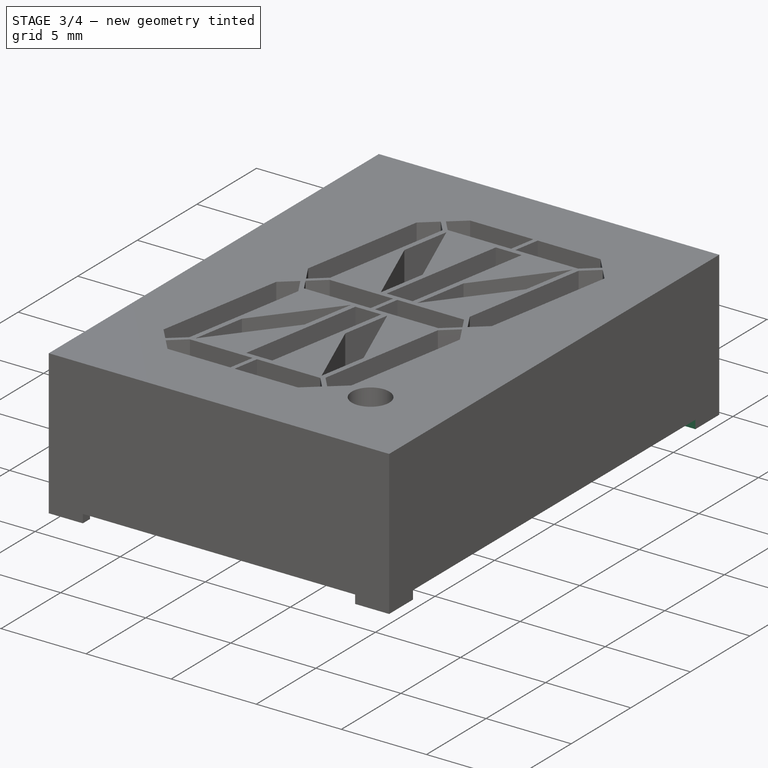
[diagram: stage 3 of 4 — iso view after this stage's code; geometry added in this stage tinted green]
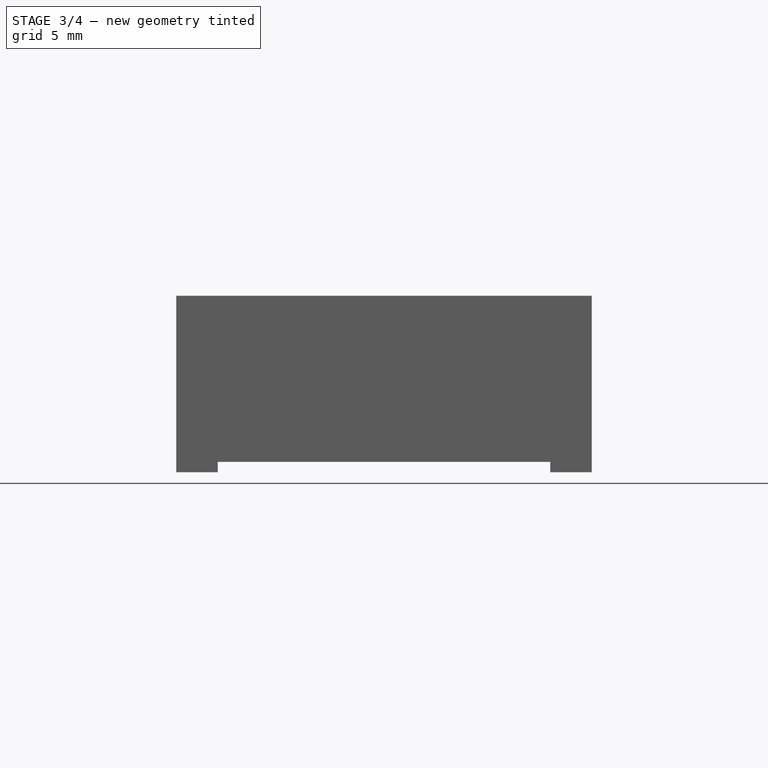
[diagram: stage 3 of 4 — front view after this stage's code; geometry added in this stage tinted green]
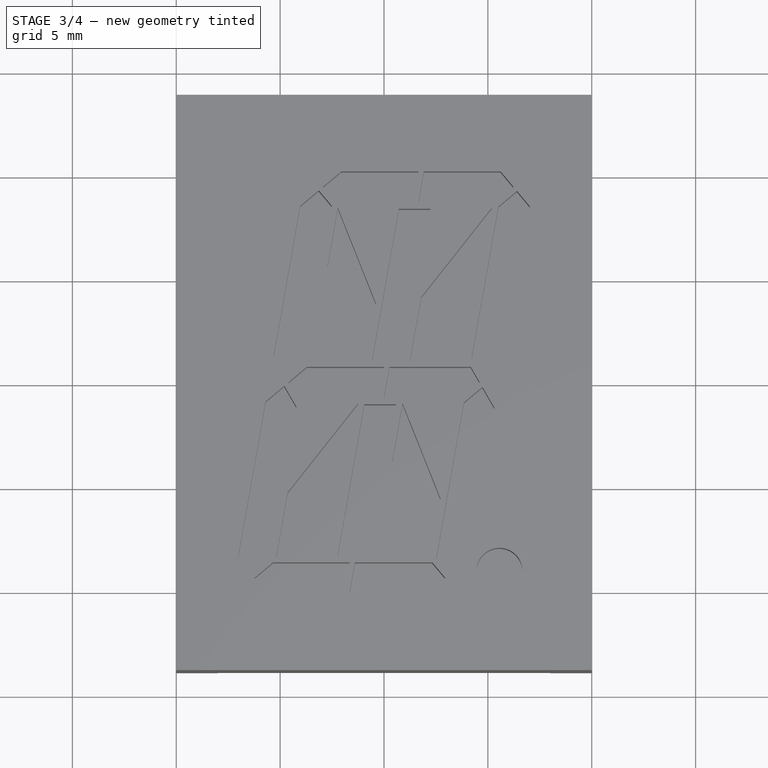
[diagram: stage 3 of 4 — top view after this stage's code; geometry added in this stage tinted green]
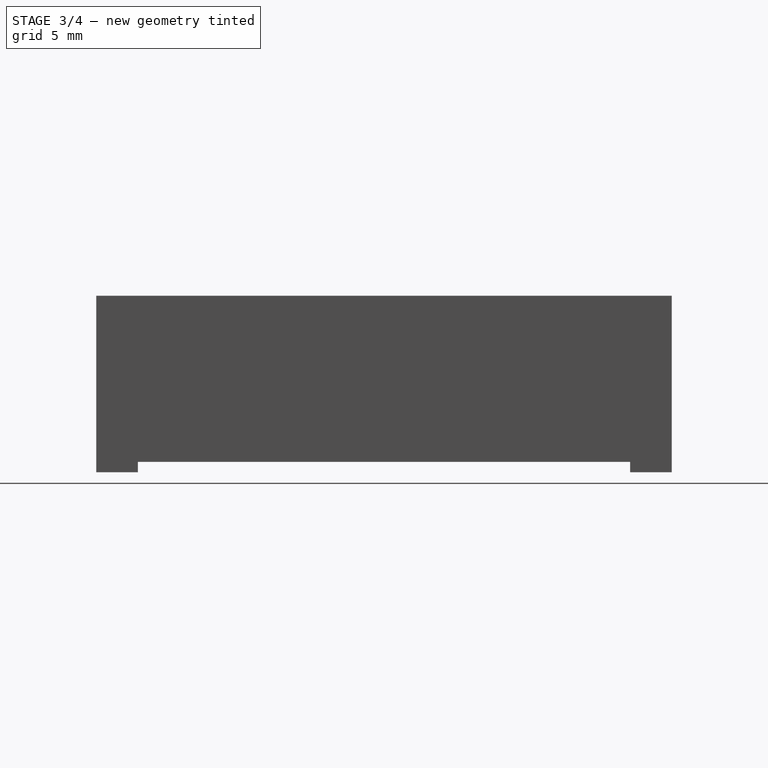
[diagram: stage 3 of 4 — right view after this stage's code; geometry added in this stage tinted green]
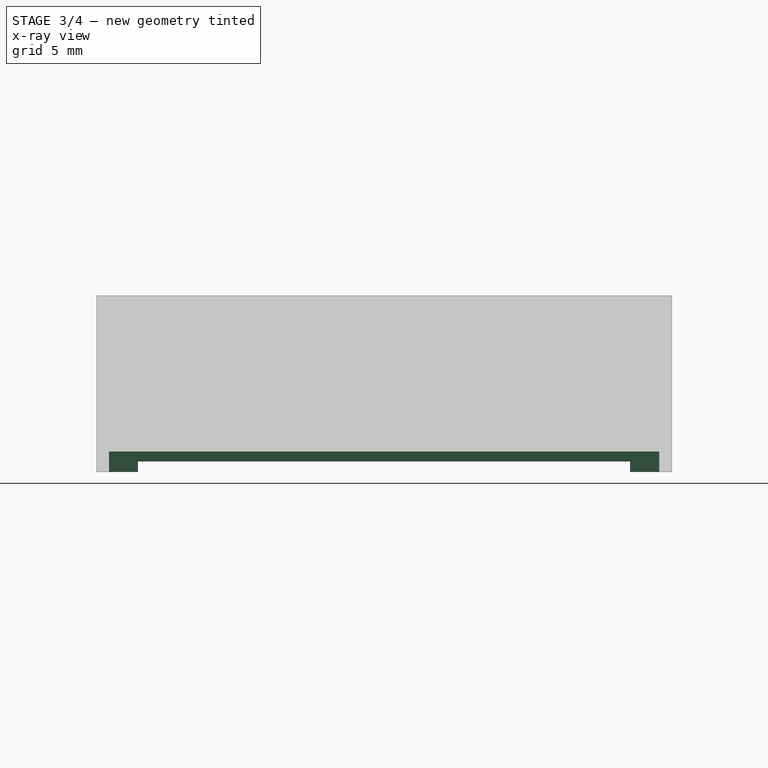
[diagram: stage 3 of 4 — x-ray composite at the right view; earlier geometry ghosted, this stage's added geometry solid]
FEATURE [Sketcher::SketchObject] Sketch006
  ArcFitTolerance = 0
  AttachmentSupport = -> [YZ_Plane003]
  FullyConstrained = true
  MakeInternals = false
  MapMode = 5
  Placement = pos=(0,0,0) rot=(0.57735,0.57735,0.57735;2.0944rad)
  expr: Constraints[10] = <<Param>>.pkgw - <<Param>>.footedge * 2
  expr: Constraints[5] = <<Param>>.footh
  sketch-geometry (4):
    g0: LineSegment StartX=-11.85 StartY=0.5 StartZ=0 EndX=11.85 EndY=0.5 EndZ=0
    g1: LineSegment StartX=11.85 StartY=0.5 StartZ=0 EndX=11.85 EndY=0 EndZ=0
    g2: LineSegment StartX=-11.85 StartY=0 StartZ=0 EndX=-11.85 EndY=0.5 EndZ=0
    g3: LineSegment StartX=-11.85 StartY=0 StartZ=0 EndX=11.85 EndY=0 EndZ=0
  constraints (11):
    c: Coincident(g0,g1)
    c: Coincident(g2,g0)
    c: Horizontal(g0)
    c: Vertical(g1)
    c: Vertical(g2)
    c: DistanceY(g1,g1) = 0.5
    c: Coincident(g3,g2)
    c: Coincident(g3,g1)
    c: Horizontal(g3)
    c: Symmetric(g1,g2,g-1)
    c: DistanceX(g3,g3) = 23.7
FEATURE [PartDesign::Pocket] Pocket001
  AllowMultiFace = false
  BaseFeature = -> Pocket
  Direction = (-1,0,0)
  Length = 5
  Length2 = 100
  Midplane = true
  Profile = -> Sketch006
  Suppressed = false
  Type = 1
FEATURE [Sketcher::SketchObject] Sketch007
  ArcFitTolerance = 0
  AttachmentSupport = -> [XY_Plane003]
  FullyConstrained = true
  MakeInternals = false
  MapMode = 5
  expr: Constraints[10] = <<Param>>.pkgw - <<Param>>.pkgedge * 2
  expr: Constraints[9] = <<Param>>.pkgl - <<Param>>.pkgedge * 2
  sketch-geometry (4):
    g0: LineSegment StartX=-9.4 StartY=13.25 StartZ=0 EndX=9.4 EndY=13.25 EndZ=0
    g1: LineSegment StartX=9.4 StartY=13.25 StartZ=0 EndX=9.4 EndY=-13.25 EndZ=0
    g2: LineSegment StartX=9.4 StartY=-13.25 StartZ=0 EndX=-9.4 EndY=-13.25 EndZ=0
    g3: LineSegment StartX=-9.4 StartY=-13.25 StartZ=0 EndX=-9.4 EndY=13.25 EndZ=0
  constraints (11):
    c: Coincident(g0,g1)
    c: Coincident(g1,g2)
    c: Coincident(g2,g3)
    c: Coincident(g3,g0)
    c: Horizontal(g0)
    c: Horizontal(g2)
    c: Vertical(g1)
    c: Vertical(g3)
    c: Symmetric(g2,g0,g-1)
    c: DistanceX(g0,g0) = 18.8
    c: DistanceY(g1,g1) = 26.5
FEATURE [PartDesign::Pocket] Pocket002
  AllowMultiFace = false
  BaseFeature = -> Pocket001
  Direction = (0,0,-1)
  Length = 1
  Length2 = 100
  Profile = -> Sketch007
  Reversed = true
  Suppressed = false
  Type = 0
  expr: Length = <<Param>>.ppdepth
FEATURE [Part::Cut] Cut  label="Pkg"
  Base = -> Body003
  Tool = -> Clone
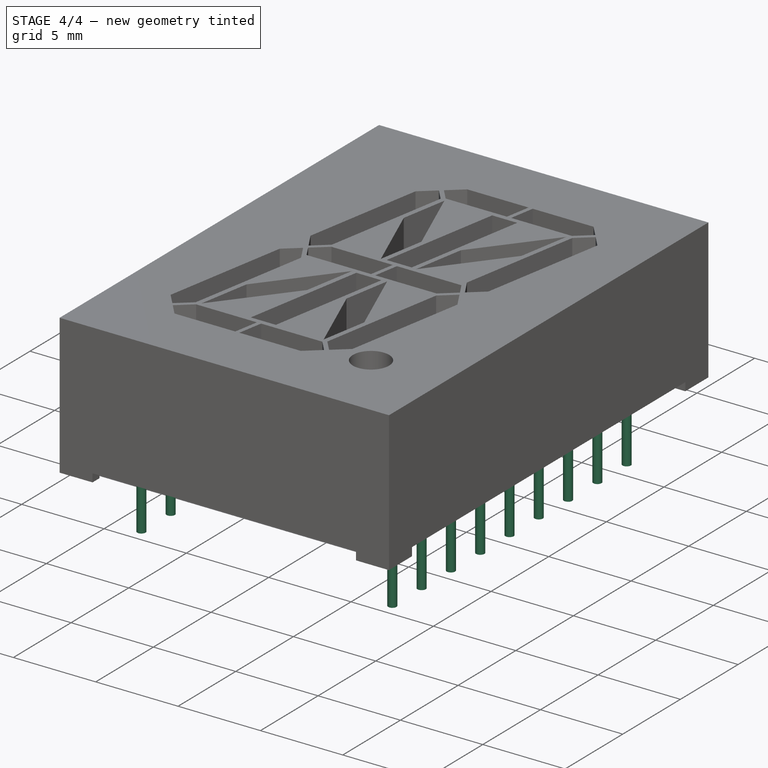
[diagram: stage 4 of 4 — iso view after this stage's code; geometry added in this stage tinted green]
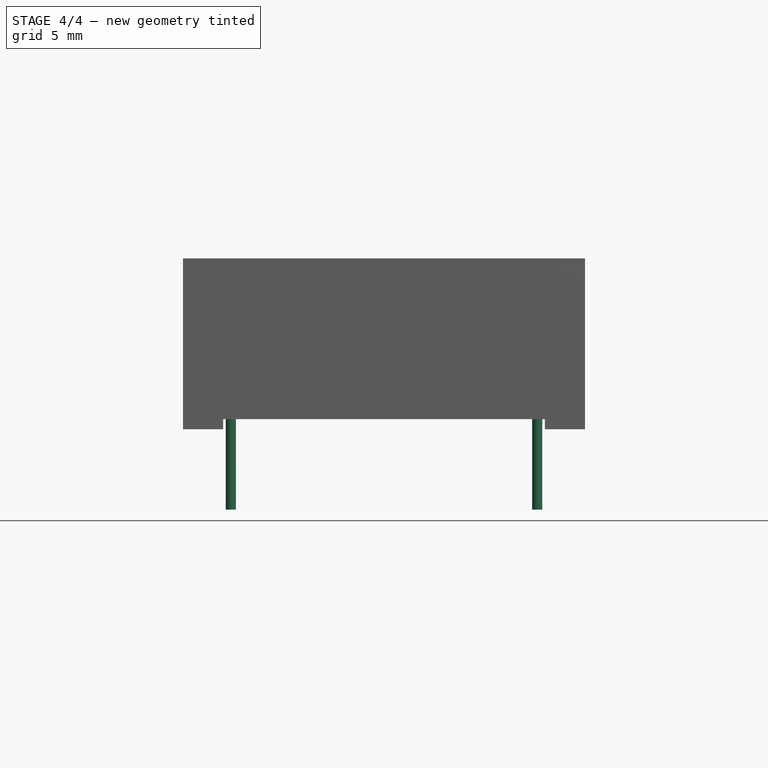
[diagram: stage 4 of 4 — front view after this stage's code; geometry added in this stage tinted green]
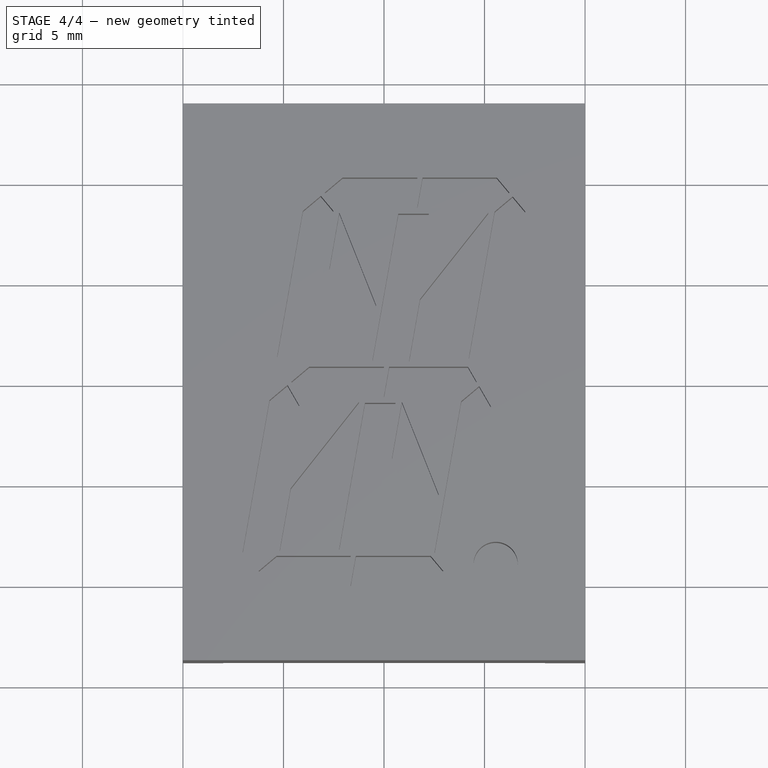
[diagram: stage 4 of 4 — top view after this stage's code; geometry added in this stage tinted green]
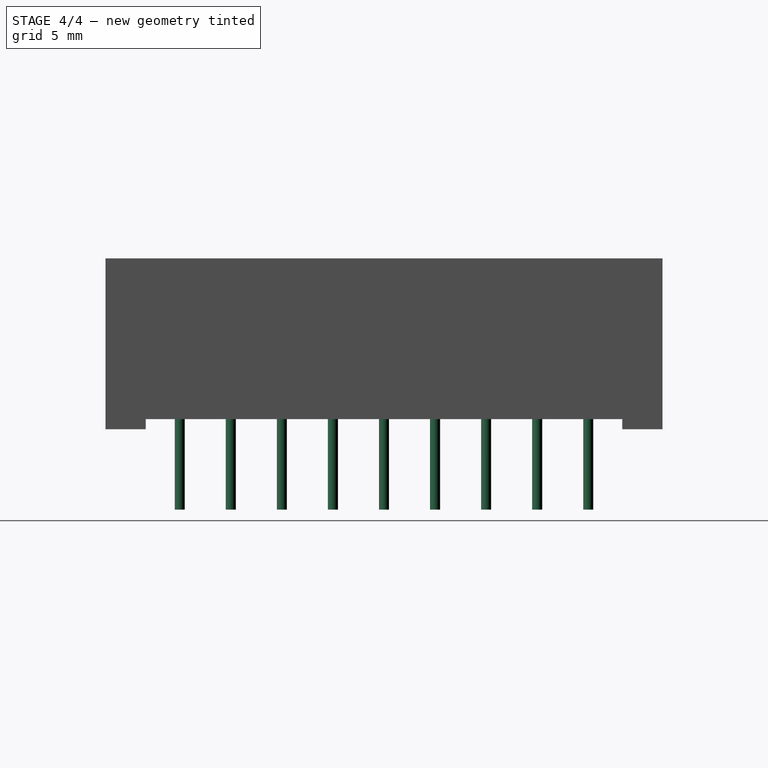
[diagram: stage 4 of 4 — right view after this stage's code; geometry added in this stage tinted green]
FEATURE [Spreadsheet::Sheet] Spreadsheet  label="Param"
  cells = A1='Pin; B2='Diameter; C2(pindia)==0.5 mm; B3='Length; C3(pinlen)==4 mm; B4='Row Spacing; C4(pinrow)==15.24 mm; B5='Pitch; C5(pinpitch)==2.54 mm; B6='Pins per row; C6(pinsperrow)=9; A8='Pkg; B9='Length; C9(pkgl)==20 mm; B10='Width; C10(pkgw)==27.7 mm; B11='Height; C11(pkgh)==8.5 mm; B12='Pin Pocket Depth; C12(ppdepth)==1 mm; B13='Edge Thickness; C13(pkgedge)==0.6 mm; B14='Foot Height; C14(footh)==0.5 mm; B15='Foot Edge; C15(footedge)==2 mm; A17='Digit; B18='Height; C18==20.32 mm; B19='Tilt; C19==10 deg
FEATURE [Sketcher::SketchObject] Sketch001
  ArcFitTolerance = 0
  AttachmentSupport = -> [XY_Plane]
  FullyConstrained = true
  MakeInternals = false
  MapMode = 5
  expr: Constraints[1] = <<Param>>.pindia
  sketch-geometry (1):
    g0: Circle CenterX=0 CenterY=0 CenterZ=0 NormalX=0 NormalY=0 NormalZ=1 AngleXU=0 Radius=0.25
  constraints (2):
    c: Coincident(g0,g-1)
    c: Diameter(g0) = 0.5
FEATURE [PartDesign::Pad] Pad
  Direction = (0,0,1)
  Length = 1
  Length2 = 4
  Profile = -> Sketch001
  ReferenceAxis = -> Sketch001 [N_Axis]
  Suppressed = false
  Type = 4
  expr: Length = <<Param>>.ppdepth
  expr: Length2 = <<Param>>.pinlen
FEATURE [PartDesign::Body] Body
  AllowCompound = false
  Group = -> [Sketch001,Pad]
  Origin = -> Origin
  Tip = -> Pad
FEATURE [Part::FeaturePython] Array  label="Pin"  # Draft array (typed FeaturePython)
  AlwaysSyncPlacement = false
  Angle = 360
  ArrayType = 0
  Axis = (0,0,1)
  Base = -> Body
  Center = (0,0,0)
  Count = 18
  ExpandArray = false
  Fuse = false
  IntervalAxis = (0,0,0)
  IntervalX = (15.24,0,0)
  IntervalY = (0,2.54,0)
  IntervalZ = (0,0,100)
  NumberCircles = 3
  NumberPolar = 5
  NumberX = 2
  NumberY = 9
  NumberZ = 1
  Placement = pos=(-7.62,-10.16,0) rot=(0,0,1;0rad)
  PlacementList = 18 placements: [(0,0,0),(0,2.54,0),(0,5.08,0),(0,7.62,0),(0,10.16,0),(0,12.7,0),(0,15.24,0),(0,17.78,0),(0,20.32,0),(15.24,0,0),(15.24,2.54,0),(15.24,5.08,0),(15.24,7.62,0),(15.24,10.16,0),(15.24,12.7,0),(15.24,15.24,0),(15.24,17.78,0),(15.24,20.32,0)]
  RadialDistance = 50
  ScaleList = (18) [(1,1,1),(1,1,1),(1,1,1),(1,1,1),(1,1,1),(1,1,1),(1,1,1),(1,1,1),(1,1,1),(1,1,1),(1,1,1),(1,1,1),(1,1,1),(1,1,1),(1,1,1),(1,1,1),(1,1,1),(1,1,1)]
  Symmetry = 1
  TangentialDistance = 25
  expr: .IntervalX.x = <<Param>>.pinrow
  expr: .IntervalY.y = <<Param>>.pinpitch
  expr: .Placement.Base.x = -<<Param>>.pinrow / 2
  expr: .Placement.Base.y = -<<Param>>.pinpitch * (<<Param>>.pinsperrow - 1) / 2
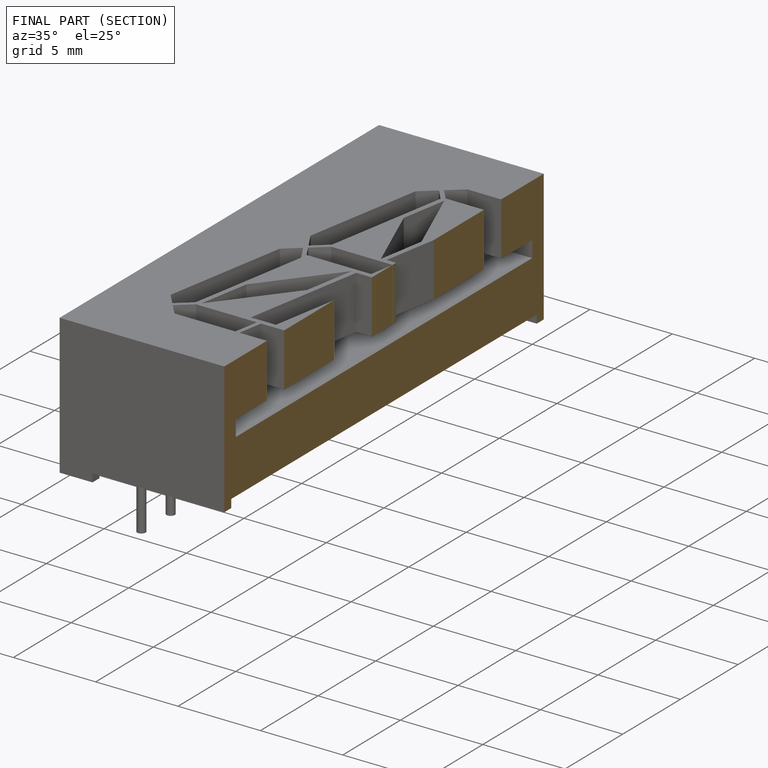
[diagram: finished part — half-section view (interior)]
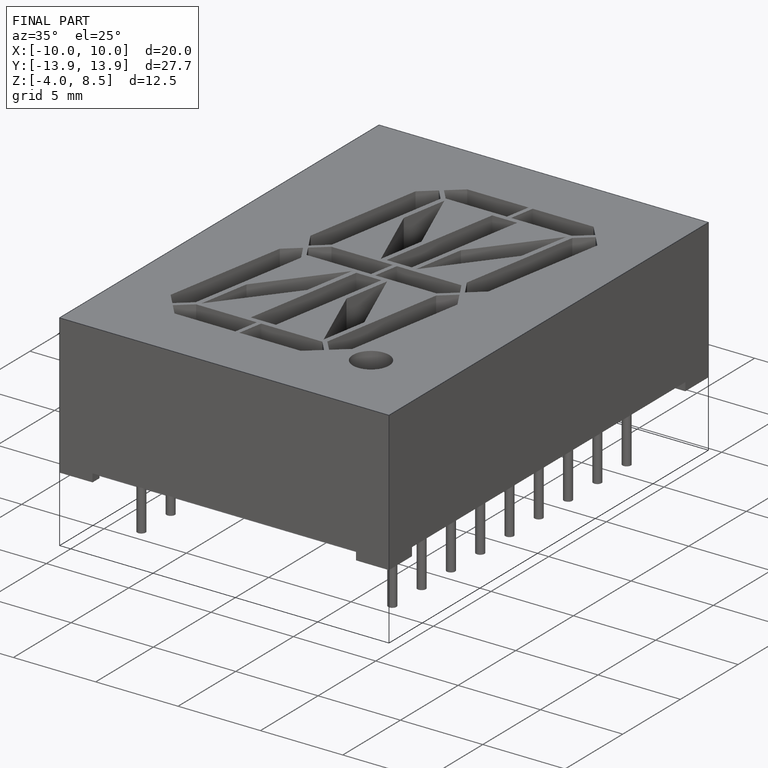
[diagram: finished part — iso view with bounding-box wireframe]
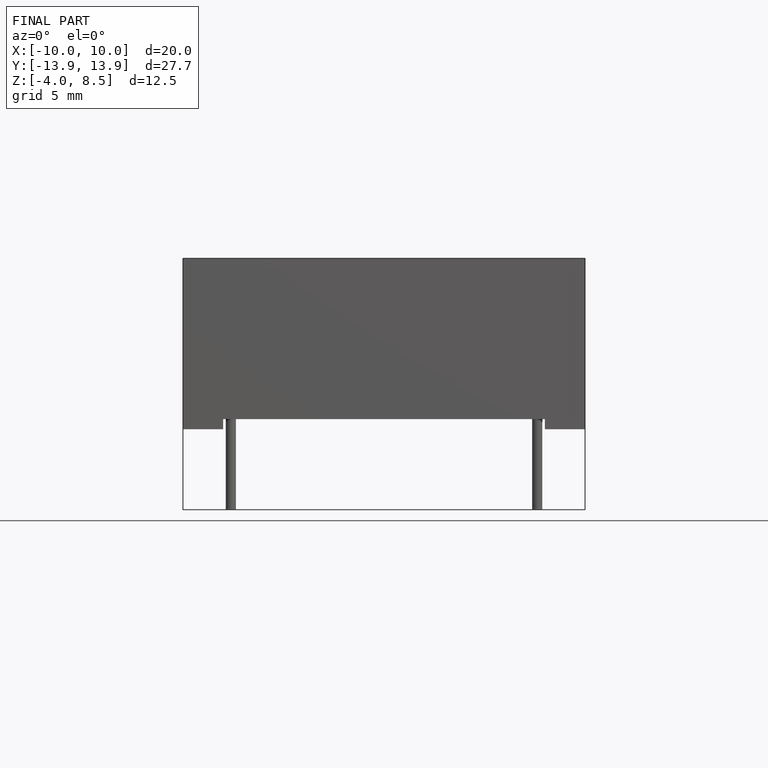
[diagram: finished part — front view with bounding-box wireframe]
